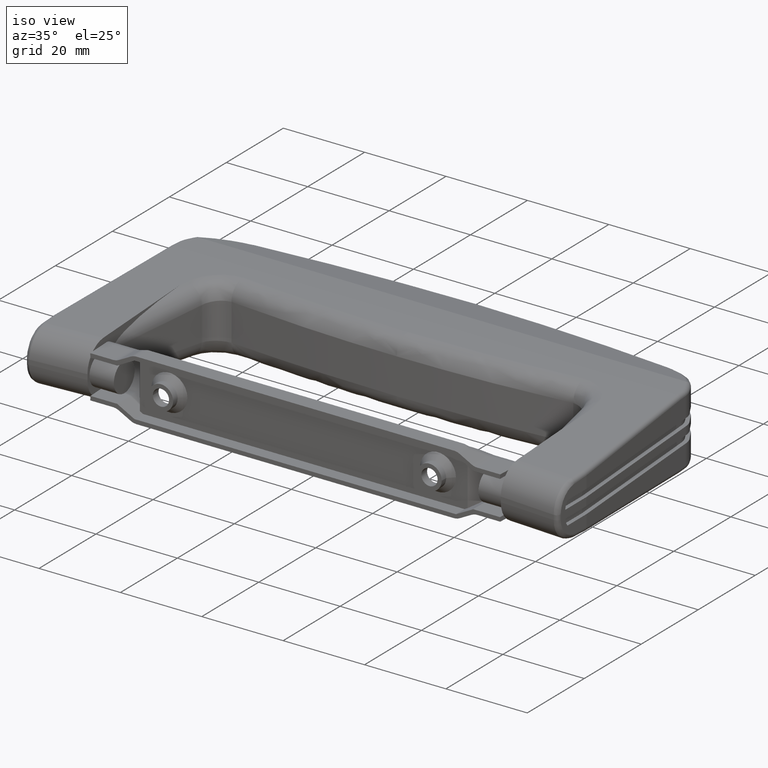
[diagram: clean part render]
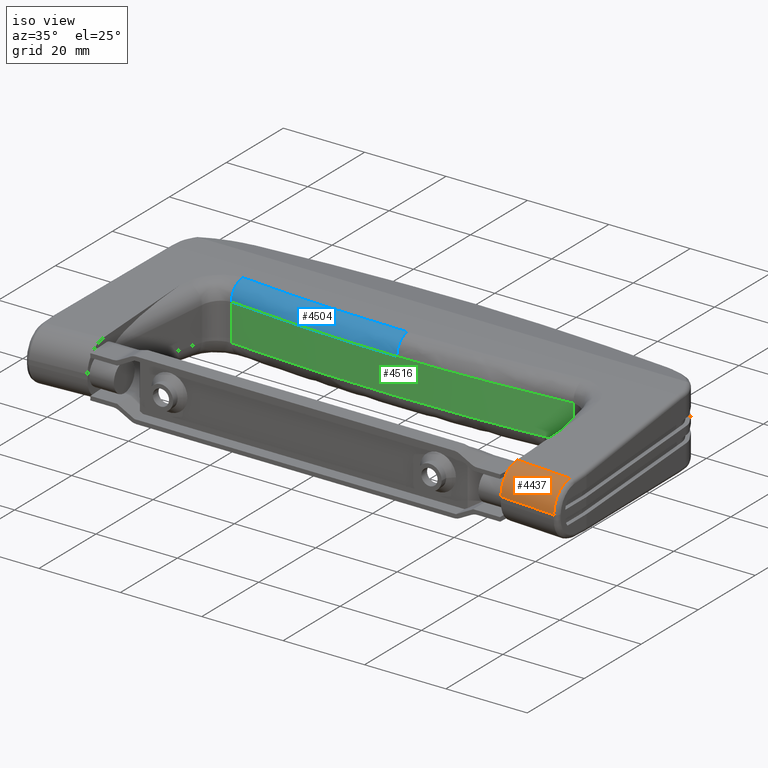
[diagram: same view with three faces highlighted in distinct colors, each labeled with its STEP entity id]
A machine part, iso view with three faces highlighted in distinct colors.
Their STEP definitions:

[orange] entity #4437 — the highlighted cylindrical surface (edge-blend (fillet) strip) has radius 6 mm, axis along (-0.9977, 0.0679, 0.0036).
#182=ELLIPSE('',#4769,6.00966054518926,6.);
#183=ELLIPSE('',#4771,6.01390626884909,6.);
#465=FACE_OUTER_BOUND('',#733,.T.);
#733=EDGE_LOOP('',(#3155,#3156,#3157,#3158));
#1049=LINE('',#7270,#1375);
#1050=LINE('',#7273,#1376);
#1375=VECTOR('',#5464,13.7317526472054);
#1376=VECTOR('',#5467,13.6637249930231);
#1857=VERTEX_POINT('',#6806);
#1912=VERTEX_POINT('',#7234);
#1913=VERTEX_POINT('',#7269);
#1914=VERTEX_POINT('',#7271);
#2396=EDGE_CURVE('',#1912,#1857,#182,.T.);
#2397=EDGE_CURVE('',#1913,#1857,#1049,.T.);
#2398=EDGE_CURVE('',#1914,#1913,#183,.T.);
#2399=EDGE_CURVE('',#1912,#1914,#1050,.T.);
#3155=ORIENTED_EDGE('',*,*,#2396,.T.);
#3156=ORIENTED_EDGE('',*,*,#2397,.F.);
#3157=ORIENTED_EDGE('',*,*,#2398,.F.);
#3158=ORIENTED_EDGE('',*,*,#2399,.F.);
#4318=CYLINDRICAL_SURFACE('',#4770,6.);
#4437=ADVANCED_FACE('',(#465),#4318,.T.);
#4769=AXIS2_PLACEMENT_3D('',#7267,#5460,#5461);
#4770=AXIS2_PLACEMENT_3D('',#7268,#5462,#5463);
#4771=AXIS2_PLACEMENT_3D('',#7272,#5465,#5466);
#5460=DIRECTION('center_axis',(-0.9999360463171,0.0112934678272435,0.000600716373787997));
#5461=DIRECTION('ref_axis',(-0.0113094330417895,-0.998524464193322,-0.0531130034145325));
#5462=DIRECTION('center_axis',(-0.997687647890171,0.0678699080197395,0.00361010149041168));
#5463=DIRECTION('ref_axis',(-0.0467683621164662,-0.724096576672182,0.688111086930424));
#5464=DIRECTION('',(0.997687647890171,-0.0678699080197395,-0.00361010149041167));
#5465=DIRECTION('center_axis',(-1.,0.,0.));
#5466=DIRECTION('ref_axis',(0.,-0.998588327594573,-0.0531164004039677));
#5467=DIRECTION('',(-0.997687647890171,0.0678699080197395,0.00361010149041168));
#6806=CARTESIAN_POINT('',(64.5,5.76319588806461,6.5565529727694));
#7234=CARTESIAN_POINT('',(64.4321296497073,0.0726442415165043,0.563795073523199));
#7267=CARTESIAN_POINT('Origin',(64.5,6.08189429048841,0.565023007201963));
#7268=CARTESIAN_POINT('Origin',(31.703510343895,8.31294800859079,0.683696077313792));
#7269=CARTESIAN_POINT('',(50.8,6.69516867718025,6.60612599346704));
#7270=CARTESIAN_POINT('',(31.703510343895,7.99424960616699,6.67522604288123));
#7271=CARTESIAN_POINT('',(50.8,1.,0.613122507485087));
#7272=CARTESIAN_POINT('Origin',(50.8,7.01386707960405,0.614596027899604));
#7273=CARTESIAN_POINT('',(31.2962882421391,2.32678311277965,0.683696077313792));

[blue] entity #4504 — the highlighted face is a freeform B-spline surface patch.
#202=ELLIPSE('',#4855,438.619186602217,438.);
#206=ELLIPSE('',#4907,442.613590907001,442.);
#284=B_SPLINE_CURVE_WITH_KNOTS('',3,(#7152,#7153,#7154,#7155,#7156,#7157,
#7158),.UNSPECIFIED.,.F.,.F.,(4,3,4),(0.,0.260948785205829,0.608880498813602),
 .UNSPECIFIED.);
#294=B_SPLINE_CURVE_WITH_KNOTS('',3,(#7970,#7971,#7972,#7973,#7974,#7975,
#7976,#7977,#7978,#7979,#7980,#7981,#7982,#7983,#7984,#7985,#7986,#7987,
#7988),.UNSPECIFIED.,.F.,.F.,(4,3,3,3,3,3,4),(-0.0011354513382097,0.,0.139753856688059,
0.296328867542585,0.347269120464166,0.452514318889721,0.608395249508475),
 .UNSPECIFIED.);
#365=B_SPLINE_SURFACE_WITH_KNOTS('',3,3,((#7947,#7948,#7949,#7950),(#7951,
#7952,#7953,#7954),(#7955,#7956,#7957,#7958),(#7959,#7960,#7961,#7962),
(#7963,#7964,#7965,#7966)),.UNSPECIFIED.,.F.,.F.,.F.,(4,1,4),(4,4),(0.,
0.571428571428571,1.),(-2.36273252408615E-15,0.0957398516149262),
 .UNSPECIFIED.);
#532=FACE_OUTER_BOUND('',#802,.T.);
#802=EDGE_LOOP('',(#3587,#3588,#3589,#3590,#3591));
#1149=LINE('',#7989,#1475);
#1475=VECTOR('',#5838,0.000665990381308879);
#1903=VERTEX_POINT('',#7126);
#1906=VERTEX_POINT('',#7150);
#1993=VERTEX_POINT('',#7663);
#2025=VERTEX_POINT('',#7967);
#2026=VERTEX_POINT('',#7969);
#2385=EDGE_CURVE('',#1903,#1906,#284,.T.);
#2518=EDGE_CURVE('',#1906,#1993,#202,.T.);
#2584=EDGE_CURVE('',#2025,#1903,#206,.T.);
#2585=EDGE_CURVE('',#1993,#2026,#294,.T.);
#2586=EDGE_CURVE('',#2025,#2026,#1149,.T.);
#3587=ORIENTED_EDGE('',*,*,#2584,.T.);
#3588=ORIENTED_EDGE('',*,*,#2385,.T.);
#3589=ORIENTED_EDGE('',*,*,#2518,.T.);
#3590=ORIENTED_EDGE('',*,*,#2585,.T.);
#3591=ORIENTED_EDGE('',*,*,#2586,.F.);
#4504=ADVANCED_FACE('',(#532),#365,.F.);
#4855=AXIS2_PLACEMENT_3D('',#7665,#5693,#5694);
#4907=AXIS2_PLACEMENT_3D('',#7968,#5836,#5837);
#5693=DIRECTION('center_axis',(0.,0.0531164004039666,-0.998588327594573));
#5694=DIRECTION('ref_axis',(-2.32868331768043E-15,-0.998588327594573,-0.0531164004039666));
#5836=DIRECTION('center_axis',(1.19691056712594E-17,-0.0526370468938462,
0.998613709746815));
#5837=DIRECTION('ref_axis',(-2.3287425082326E-15,-0.998613709746815,-0.0526370468938462));
#5838=DIRECTION('',(0.,0.,1.));
#7126=CARTESIAN_POINT('',(0.,37.0000000000001,4.42519639166342));
#7150=CARTESIAN_POINT('',(-2.09478645151155E-28,40.7875343983842,8.41954970204172));
#7152=CARTESIAN_POINT('Ctrl Pts',(-1.36037048579973E-14,37.0000000000001,
4.42519639166342));
#7153=CARTESIAN_POINT('Ctrl Pts',(-1.36019842589228E-14,37.0000000000001,
5.29242777334912));
#7154=CARTESIAN_POINT('Ctrl Pts',(-1.35893840740046E-14,37.291625702195,
6.16110309680395));
#7155=CARTESIAN_POINT('Ctrl Pts',(-1.35684304173656E-14,37.8168727201526,
6.84828787457267));
#7156=CARTESIAN_POINT('Ctrl Pts',(-1.35404922085135E-14,38.5172020774294,
7.76453424493097));
#7157=CARTESIAN_POINT('Ctrl Pts',(-1.34977033832691E-14,39.6328582182842,
8.35813075629171));
#7158=CARTESIAN_POINT('Ctrl Pts',(-1.34545152796752E-14,40.7875343983842,
8.41954970204172));
#7663=CARTESIAN_POINT('',(-41.8700222699363,42.7933816450301,8.52624370452289));
#7665=CARTESIAN_POINT('Origin',(0.,478.787534398384,31.7174220424672));
#7947=CARTESIAN_POINT('Ctrl Pts',(1.34716628945881E-14,40.7875343983842,
8.41954970204172));
#7948=CARTESIAN_POINT('Ctrl Pts',(-13.9780183357795,40.7875343983842,8.41954970204172));
#7949=CARTESIAN_POINT('Ctrl Pts',(-27.9560171067422,41.4571717386177,8.45516870950095));
#7950=CARTESIAN_POINT('Ctrl Pts',(-41.8700222699363,42.7933816450302,8.52624370452289));
#7951=CARTESIAN_POINT('Ctrl Pts',(1.35148964902293E-14,39.6328582182842,
8.35813075629171));
#7952=CARTESIAN_POINT('Ctrl Pts',(-14.0151015497498,39.6328582182842,8.35813075629171));
#7953=CARTESIAN_POINT('Ctrl Pts',(-28.0297954566235,40.3041937515062,8.39383585117806));
#7954=CARTESIAN_POINT('Ctrl Pts',(-41.9807306266434,41.6438237512354,8.46509700804444));
#7955=CARTESIAN_POINT('Ctrl Pts',(1.35898553245706E-14,37.6804599717883,
7.31933686141041));
#7956=CARTESIAN_POINT('Ctrl Pts',(-14.0790019316369,37.6804599717883,7.31933686141041));
#7957=CARTESIAN_POINT('Ctrl Pts',(-28.1581070604673,38.3547801069583,7.35509967282144));
#7958=CARTESIAN_POINT('Ctrl Pts',(-42.1726767180627,39.7003283958235,7.42645943836572));
#7959=CARTESIAN_POINT('Ctrl Pts',(1.36192867624004E-14,37.0000000000001,
5.29242777334912));
#7960=CARTESIAN_POINT('Ctrl Pts',(-14.1042770142484,37.0000000000001,5.29242777334912));
#7961=CARTESIAN_POINT('Ctrl Pts',(-28.2083014797425,37.6756049263525,5.32809068268863));
#7962=CARTESIAN_POINT('Ctrl Pts',(-42.2480067778204,39.0237438875228,5.39924975861809));
#7963=CARTESIAN_POINT('Ctrl Pts',(1.36210090721331E-14,37.0000000000001,
4.42519639166342));
#7964=CARTESIAN_POINT('Ctrl Pts',(-14.1056714712661,37.0000000000001,4.42519639166342));
#7965=CARTESIAN_POINT('Ctrl Pts',(-28.2113231990412,37.6757527497334,4.46081539912265));
#7966=CARTESIAN_POINT('Ctrl Pts',(-42.2523969025385,39.0241654863414,4.53189039414459));
#7967=CARTESIAN_POINT('',(-42.,39.,4.53061662849792));
#7968=CARTESIAN_POINT('Origin',(0.,479.,27.7230687320889));
#7969=CARTESIAN_POINT('',(-41.9999996245155,39.0000000198522,4.53128261887923));
#7970=CARTESIAN_POINT('Ctrl Pts',(-41.8700222699363,42.7933816450302,8.52624370452289));
#7971=CARTESIAN_POINT('Ctrl Pts',(-41.8701768713357,42.7896053045913,8.52604283535061));
#7972=CARTESIAN_POINT('Ctrl Pts',(-41.8703313933587,42.7858293795345,8.52583628155131));
#7973=CARTESIAN_POINT('Ctrl Pts',(-41.8704858355774,42.7820538792734,8.52562405026942));
#7974=CARTESIAN_POINT('Ctrl Pts',(-41.8894949247075,42.3173569744632,8.49950215569247));
#7975=CARTESIAN_POINT('Ctrl Pts',(-41.9071322812466,41.8624545042382,8.38839457254392));
#7976=CARTESIAN_POINT('Ctrl Pts',(-41.9227777191756,41.4349645484055,8.20427235964654));
#7977=CARTESIAN_POINT('Ctrl Pts',(-41.940306284552,40.9560207391901,7.99798869659663));
#7978=CARTESIAN_POINT('Ctrl Pts',(-41.9550368715148,40.5196485888655,7.70382041273599));
#7979=CARTESIAN_POINT('Ctrl Pts',(-41.9665716048136,40.1521535530415,7.33527034185107));
#7980=CARTESIAN_POINT('Ctrl Pts',(-41.970324325177,40.0325923920994,7.21536593486631));
#7981=CARTESIAN_POINT('Ctrl Pts',(-41.9737137559998,39.921127037154,7.08822768546041));
#7982=CARTESIAN_POINT('Ctrl Pts',(-41.9767378859323,39.8186206702503,6.95434313085682));
#7983=CARTESIAN_POINT('Ctrl Pts',(-41.9829858948555,39.6068372120631,6.67773071322586));
#7984=CARTESIAN_POINT('Ctrl Pts',(-41.9876926079268,39.4331053539772,6.37239886033367));
#7985=CARTESIAN_POINT('Ctrl Pts',(-41.9912646563908,39.3003471143177,6.04741077885954));
#7986=CARTESIAN_POINT('Ctrl Pts',(-41.9965552943212,39.1037160256311,5.56606393037576));
#7987=CARTESIAN_POINT('Ctrl Pts',(-41.9994126540016,39.0000339092713,5.05085231463914));
#7988=CARTESIAN_POINT('Ctrl Pts',(-41.9999996201411,39.0000000764253,4.53128262206711));
#7989=CARTESIAN_POINT('',(-42.,39.,0.));

[green] entity #4516 — the highlighted cylindrical surface (partial cylindrical patch) has radius 442 mm, axis along (0, 0, 1).
#175=ELLIPSE('',#4757,442.613590907001,441.999999999999);
#176=ELLIPSE('',#4758,442.613590907001,442.);
#205=ELLIPSE('',#4906,442.613590907001,441.999999999999);
#206=ELLIPSE('',#4907,442.613590907001,442.);
#544=FACE_OUTER_BOUND('',#815,.T.);
#815=EDGE_LOOP('',(#3631,#3632,#3633,#3634,#3635,#3636));
#1057=LINE('',#7293,#1383);
#1155=LINE('',#8113,#1481);
#1383=VECTOR('',#5492,9.06123325699584);
#1481=VECTOR('',#5884,9.06123325699584);
#1900=VERTEX_POINT('',#7094);
#1901=VERTEX_POINT('',#7096);
#1902=VERTEX_POINT('',#7125);
#1903=VERTEX_POINT('',#7126);
#2024=VERTEX_POINT('',#7944);
#2025=VERTEX_POINT('',#7967);
#2379=EDGE_CURVE('',#1901,#1900,#175,.T.);
#2381=EDGE_CURVE('',#1902,#1903,#176,.T.);
#2409=EDGE_CURVE('',#1900,#1902,#1057,.T.);
#2582=EDGE_CURVE('',#1901,#2024,#205,.T.);
#2584=EDGE_CURVE('',#2025,#1903,#206,.T.);
#2603=EDGE_CURVE('',#2024,#2025,#1155,.T.);
#3631=ORIENTED_EDGE('',*,*,#2582,.F.);
#3632=ORIENTED_EDGE('',*,*,#2379,.T.);
#3633=ORIENTED_EDGE('',*,*,#2409,.T.);
#3634=ORIENTED_EDGE('',*,*,#2381,.T.);
#3635=ORIENTED_EDGE('',*,*,#2584,.F.);
#3636=ORIENTED_EDGE('',*,*,#2603,.F.);
#4350=CYLINDRICAL_SURFACE('',#4927,442.);
#4516=ADVANCED_FACE('',(#544),#4350,.T.);
#4757=AXIS2_PLACEMENT_3D('',#7097,#5432,#5433);
#4758=AXIS2_PLACEMENT_3D('',#7127,#5434,#5435);
#4906=AXIS2_PLACEMENT_3D('',#7945,#5833,#5834);
#4907=AXIS2_PLACEMENT_3D('',#7968,#5836,#5837);
#4927=AXIS2_PLACEMENT_3D('',#8112,#5882,#5883);
#5432=DIRECTION('center_axis',(-1.57160317384696E-18,0.0526370468938469,
0.998613709746815));
#5433=DIRECTION('ref_axis',(-1.21499609125179E-16,-0.998613709746815,0.0526370468938469));
#5434=DIRECTION('center_axis',(1.19691056712594E-17,0.0526370468938462,
-0.998613709746815));
#5435=DIRECTION('ref_axis',(2.3287425082326E-15,-0.998613709746815,-0.0526370468938462));
#5492=DIRECTION('',(0.,0.,1.));
#5833=DIRECTION('center_axis',(-1.57160317384696E-18,-0.0526370468938469,
-0.998613709746815));
#5834=DIRECTION('ref_axis',(1.21499609125179E-16,-0.998613709746815,0.0526370468938469));
#5836=DIRECTION('center_axis',(1.19691056712594E-17,-0.0526370468938462,
0.998613709746815));
#5837=DIRECTION('ref_axis',(-2.3287425082326E-15,-0.998613709746815,-0.0526370468938462));
#5882=DIRECTION('center_axis',(0.,0.,1.));
#5883=DIRECTION('ref_axis',(-0.0950226244343892,-0.995475113122172,0.));
#5884=DIRECTION('',(0.,0.,1.));
#7094=CARTESIAN_POINT('',(42.,39.,-4.53061662849792));
#7096=CARTESIAN_POINT('',(0.,37.0000000000001,-4.42519639166343));
#7097=CARTESIAN_POINT('Origin',(0.,479.,-27.7230687320892));
#7125=CARTESIAN_POINT('',(42.,39.,4.53061662849792));
#7126=CARTESIAN_POINT('',(0.,37.0000000000001,4.42519639166342));
#7127=CARTESIAN_POINT('Origin',(0.,479.,27.7230687320889));
#7293=CARTESIAN_POINT('',(42.,39.,0.));
#7944=CARTESIAN_POINT('',(-42.,39.,-4.53061662849792));
#7945=CARTESIAN_POINT('Origin',(0.,479.,-27.7230687320892));
#7967=CARTESIAN_POINT('',(-42.,39.,4.53061662849792));
#7968=CARTESIAN_POINT('Origin',(0.,479.,27.7230687320889));
#8112=CARTESIAN_POINT('Origin',(0.,479.,0.));
#8113=CARTESIAN_POINT('',(-42.,39.,0.));